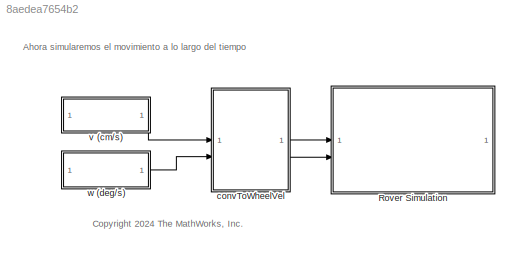
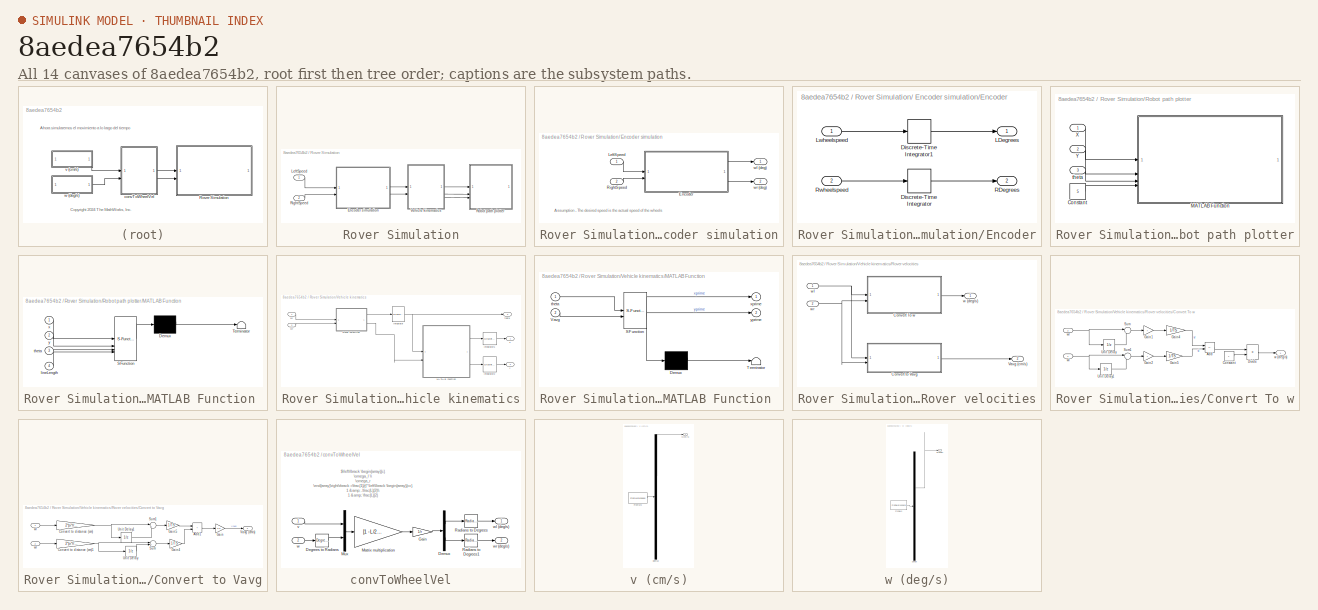
[diagram: thumbnail index - all 14 canvases of the model, root first then tree order]
MODEL slx_8aedea7654b2
KIND model
CONFIG AbsTol = auto
CONFIG EnableMultiTasking = on
CONFIG FixedStep = TS
CONFIG MaxStep = auto
CONFIG MinStep = auto
CONFIG PostLoadFcn = params
CONFIG RelTol = 1e-3
CONFIG SampleTimeConstraint = Unconstrained
CONFIG SolverName = FixedStepDiscrete
CONFIG StartTime = 0.0
CONFIG StopTime = 11
WORKSPACE source: mxarray member
WORKSPACE Ia = 0.1
WORKSPACE Id = 0.25
WORKSPACE Pa = 5
WORKSPACE Pd = 9
WORKSPACE TS = 0.01
BLOCK [SubSystem] Rover Simulation
BLOCK [SubSystem] Rover Simulation/ Encoder simulation
BLOCK [SubSystem] Rover Simulation/ Encoder simulation/Encoder
BLOCK [DiscreteIntegrator] Rover Simulation/ Encoder simulation/Encoder/Discrete-Time Integrator
  ICPrevOutput = DiscIntNeverNeededParam
  ICPrevScaledInput = DiscIntNeverNeededParam
  InitialConditionSetting = Auto
  SampleTime = -1
BLOCK [DiscreteIntegrator] Rover Simulation/ Encoder simulation/Encoder/Discrete-Time Integrator1
  ICPrevOutput = DiscIntNeverNeededParam
  ICPrevScaledInput = DiscIntNeverNeededParam
  InitialConditionSetting = Auto
  SampleTime = -1
BLOCK [Outport] Rover Simulation/ Encoder simulation/Encoder/LDegrees
  VectorParamsAs1DForOutWhenUnconnected = off
BLOCK [Inport] Rover Simulation/ Encoder simulation/Encoder/Lwheelspeed
BLOCK [Outport] Rover Simulation/ Encoder simulation/Encoder/RDegrees
  Port = 2
  VectorParamsAs1DForOutWhenUnconnected = off
BLOCK [Inport] Rover Simulation/ Encoder simulation/Encoder/Rwheelspeed
  Port = 2
BLOCK [Inport] Rover Simulation/ Encoder simulation/LeftSpeed
BLOCK [Inport] Rover Simulation/ Encoder simulation/RightSpeed
  Port = 2
BLOCK [Outport] Rover Simulation/ Encoder simulation/wl (deg)
  VectorParamsAs1DForOutWhenUnconnected = off
BLOCK [Outport] Rover Simulation/ Encoder simulation/wr (deg)
  Port = 2
  VectorParamsAs1DForOutWhenUnconnected = off
BLOCK [Inport] Rover Simulation/LeftSpeed
BLOCK [Inport] Rover Simulation/RightSpeed
  Port = 2
BLOCK [SubSystem] Rover Simulation/Robot path plotter
BLOCK [Constant] Rover Simulation/Robot path plotter/Constant
  Value = 5
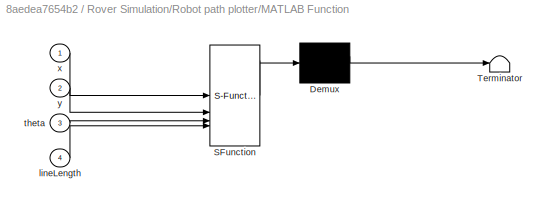
BLOCK [SubSystem] Rover Simulation/Robot path plotter/MATLAB Function 
  ErrorFcn = Stateflow.Translate.translate
  PermitHierarchicalResolution = ExplicitOnly
  SFBlockType = MATLAB Function
  TreatAsAtomicUnit = on
BLOCK [Demux] Rover Simulation/Robot path plotter/MATLAB Function / Demux 
  Outputs = 1
BLOCK [S-Function] Rover Simulation/Robot path plotter/MATLAB Function / SFunction 
  EnableBusSupport = on
  FunctionName = sf_sfun
  Parameters = StartTheta,StartX,StartY
  PortCounts = [4 1]
  SFcnIsStateOwnerBlock = off
  SFunctionDeploymentMode = off
  Tag = Stateflow S-Function 1
BLOCK [Terminator] Rover Simulation/Robot path plotter/MATLAB Function / Terminator 
BLOCK [Inport] Rover Simulation/Robot path plotter/MATLAB Function /lineLength
  Port = 4
BLOCK [Inport] Rover Simulation/Robot path plotter/MATLAB Function /theta
  Port = 3
BLOCK [Inport] Rover Simulation/Robot path plotter/MATLAB Function /x
BLOCK [Inport] Rover Simulation/Robot path plotter/MATLAB Function /y
  Port = 2
BLOCK [Inport] Rover Simulation/Robot path plotter/X
BLOCK [Inport] Rover Simulation/Robot path plotter/Y
  Port = 2
BLOCK [Inport] Rover Simulation/Robot path plotter/theta
  Port = 3
BLOCK [SubSystem] Rover Simulation/Vehicle kinematics
BLOCK [DiscreteIntegrator] Rover Simulation/Vehicle kinematics/Integrator
  ICPrevOutput = DiscIntNeverNeededParam
  ICPrevScaledInput = DiscIntNeverNeededParam
  InitialCondition = StartTheta
  InitialConditionSetting = Auto
  SampleTime = -1
  gainval = 1
BLOCK [DiscreteIntegrator] Rover Simulation/Vehicle kinematics/Integrator1
  ICPrevOutput = DiscIntNeverNeededParam
  ICPrevScaledInput = DiscIntNeverNeededParam
  InitialCondition = StartX
  InitialConditionSetting = Auto
  SampleTime = -1
  gainval = 1
BLOCK [DiscreteIntegrator] Rover Simulation/Vehicle kinematics/Integrator2
  ICPrevOutput = DiscIntNeverNeededParam
  ICPrevScaledInput = DiscIntNeverNeededParam
  InitialCondition = StartY
  InitialConditionSetting = Auto
  SampleTime = -1
  gainval = 1
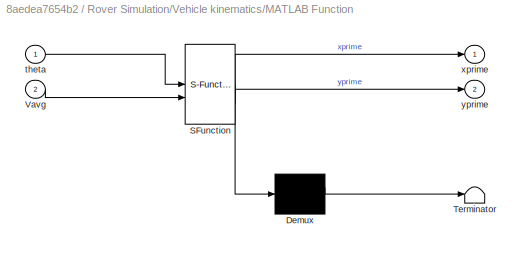
BLOCK [SubSystem] Rover Simulation/Vehicle kinematics/MATLAB Function 
  ErrorFcn = Stateflow.Translate.translate
  PermitHierarchicalResolution = ExplicitOnly
  SFBlockType = MATLAB Function
  TreatAsAtomicUnit = on
BLOCK [Demux] Rover Simulation/Vehicle kinematics/MATLAB Function / Demux 
  Outputs = 1
BLOCK [S-Function] Rover Simulation/Vehicle kinematics/MATLAB Function / SFunction 
  EnableBusSupport = on
  FunctionName = sf_sfun
  PortCounts = [2 3]
  SFcnIsStateOwnerBlock = off
  SFunctionDeploymentMode = off
  Tag = Stateflow S-Function 2
BLOCK [Terminator] Rover Simulation/Vehicle kinematics/MATLAB Function / Terminator 
BLOCK [Inport] Rover Simulation/Vehicle kinematics/MATLAB Function /Vavg
  Port = 2
BLOCK [Inport] Rover Simulation/Vehicle kinematics/MATLAB Function /theta
BLOCK [Outport] Rover Simulation/Vehicle kinematics/MATLAB Function /xprime
  VectorParamsAs1DForOutWhenUnconnected = off
BLOCK [Outport] Rover Simulation/Vehicle kinematics/MATLAB Function /yprime
  Port = 2
  VectorParamsAs1DForOutWhenUnconnected = off
BLOCK [SubSystem] Rover Simulation/Vehicle kinematics/Rover velocities
BLOCK [SubSystem] Rover Simulation/Vehicle kinematics/Rover velocities/Convert To w
BLOCK [Sum] Rover Simulation/Vehicle kinematics/Rover velocities/Convert To w/Add
  IconShape = rectangular
  Inputs = +-
BLOCK [Constant] Rover Simulation/Vehicle kinematics/Rover velocities/Convert To w/Constant
  Value = L
BLOCK [Product] Rover Simulation/Vehicle kinematics/Rover velocities/Convert To w/Divide
  Inputs = */
BLOCK [Gain] Rover Simulation/Vehicle kinematics/Rover velocities/Convert To w/Gain1
  Gain = r
BLOCK [Gain] Rover Simulation/Vehicle kinematics/Rover velocities/Convert To w/Gain2
  Gain = r
BLOCK [Gain] Rover Simulation/Vehicle kinematics/Rover velocities/Convert To w/Gain4
  Gain = 1/TS
BLOCK [Gain] Rover Simulation/Vehicle kinematics/Rover velocities/Convert To w/Gain5
  Gain = 1/TS
BLOCK [Sum] Rover Simulation/Vehicle kinematics/Rover velocities/Convert To w/Sum
  Inputs = |+-
BLOCK [Sum] Rover Simulation/Vehicle kinematics/Rover velocities/Convert To w/Sum1
  Inputs = |+-
BLOCK [UnitDelay] Rover Simulation/Vehicle kinematics/Rover velocities/Convert To w/Unit Delay
  HasFrameUpgradeWarning = on
  SampleTime = -1
BLOCK [UnitDelay] Rover Simulation/Vehicle kinematics/Rover velocities/Convert To w/Unit Delay1
  HasFrameUpgradeWarning = on
  SampleTime = -1
BLOCK [Outport] Rover Simulation/Vehicle kinematics/Rover velocities/Convert To w/w (deg//s)
  VectorParamsAs1DForOutWhenUnconnected = off
BLOCK [Inport] Rover Simulation/Vehicle kinematics/Rover velocities/Convert To w/wl
BLOCK [Inport] Rover Simulation/Vehicle kinematics/Rover velocities/Convert To w/wr
  Port = 2
BLOCK [SubSystem] Rover Simulation/Vehicle kinematics/Rover velocities/Convert to Vavg
BLOCK [Sum] Rover Simulation/Vehicle kinematics/Rover velocities/Convert to Vavg/Add1
  IconShape = rectangular
BLOCK [Gain] Rover Simulation/Vehicle kinematics/Rover velocities/Convert to Vavg/Convert to distance (cm)
  Gain = 2*pi*r/360
BLOCK [Gain] Rover Simulation/Vehicle kinematics/Rover velocities/Convert to Vavg/Convert to distance (cm)1
  Gain = 2*pi*r/360
BLOCK [Gain] Rover Simulation/Vehicle kinematics/Rover velocities/Convert to Vavg/Gain
  Gain = 0.5
BLOCK [Gain] Rover Simulation/Vehicle kinematics/Rover velocities/Convert to Vavg/Gain4
  Gain = 1/TS
BLOCK [Gain] Rover Simulation/Vehicle kinematics/Rover velocities/Convert to Vavg/Gain5
  Gain = 1/TS
BLOCK [Sum] Rover Simulation/Vehicle kinematics/Rover velocities/Convert to Vavg/Sum
  Inputs = |+-
BLOCK [Sum] Rover Simulation/Vehicle kinematics/Rover velocities/Convert to Vavg/Sum1
  Inputs = |+-
BLOCK [UnitDelay] Rover Simulation/Vehicle kinematics/Rover velocities/Convert to Vavg/Unit Delay
  HasFrameUpgradeWarning = on
  SampleTime = -1
BLOCK [UnitDelay] Rover Simulation/Vehicle kinematics/Rover velocities/Convert to Vavg/Unit Delay1
  HasFrameUpgradeWarning = on
  SampleTime = -1
BLOCK [Outport] Rover Simulation/Vehicle kinematics/Rover velocities/Convert to Vavg/Vavg (cm//s)
  VectorParamsAs1DForOutWhenUnconnected = off
BLOCK [Inport] Rover Simulation/Vehicle kinematics/Rover velocities/Convert to Vavg/wl
BLOCK [Inport] Rover Simulation/Vehicle kinematics/Rover velocities/Convert to Vavg/wr
  Port = 2
BLOCK [Outport] Rover Simulation/Vehicle kinematics/Rover velocities/Vavg (cm//s)
  Port = 2
BLOCK [Outport] Rover Simulation/Vehicle kinematics/Rover velocities/w (deg//s)
BLOCK [Inport] Rover Simulation/Vehicle kinematics/Rover velocities/wl
BLOCK [Inport] Rover Simulation/Vehicle kinematics/Rover velocities/wr
  Port = 2
BLOCK [Outport] Rover Simulation/Vehicle kinematics/theta
  Port = 3
  VectorParamsAs1DForOutWhenUnconnected = off
BLOCK [Inport] Rover Simulation/Vehicle kinematics/wl
BLOCK [Inport] Rover Simulation/Vehicle kinematics/wr
  Port = 2
BLOCK [Outport] Rover Simulation/Vehicle kinematics/x
  VectorParamsAs1DForOutWhenUnconnected = off
BLOCK [Outport] Rover Simulation/Vehicle kinematics/y
  Port = 2
  VectorParamsAs1DForOutWhenUnconnected = off
BLOCK [SubSystem] convToWheelVel
BLOCK [Gain] convToWheelVel/ Gain
  Gain = 1/r
  Multiplication = Matrix(K*u)
BLOCK [Reference] convToWheelVel/Degrees to Radians  REF=simulink_extras/Transformations/Degrees to
Radians
  SourceBlock = simulink_extras/Transformations/Degrees to\nRadians
  SourceType = DegreesToRadians
BLOCK [Demux] convToWheelVel/Demux
  Outputs = 2
BLOCK [Gain] convToWheelVel/Matrix multiplication
  Gain = [1 -L/2; 1 L/2]
  Multiplication = Matrix(K*u)
BLOCK [Mux] convToWheelVel/Mux
  DisplayOption = bar
  Inputs = 2
BLOCK [Reference] convToWheelVel/Radians to Degrees  REF=simulink_extras/Transformations/Radians
to Degrees
  SourceBlock = simulink_extras/Transformations/Radians\nto Degrees
  SourceType = RadiansToDegrees
BLOCK [Reference] convToWheelVel/Radians to Degrees1  REF=simulink_extras/Transformations/Radians
to Degrees
  SourceBlock = simulink_extras/Transformations/Radians\nto Degrees
  SourceType = RadiansToDegrees
BLOCK [Inport] convToWheelVel/v
BLOCK [Inport] convToWheelVel/w
  Port = 2
BLOCK [Outport] convToWheelVel/wl (deg//s)
  VectorParamsAs1DForOutWhenUnconnected = off
BLOCK [Outport] convToWheelVel/wr (deg//s)
  Port = 2
  VectorParamsAs1DForOutWhenUnconnected = off
BLOCK [SubSystem] v (cm//s)
  ClipboardFcn = sigbuilder_block('clipboard');
  CloseFcn = sigbuilder_block('close');
  ContinueFcn = sigbuilder_block('continue');
  CopyFcn = sigbuilder_block('copy');
  DeleteFcn = sigbuilder_block('delete');
  LoadFcn = sigbuilder_block('load');
  MaskHideContents = on
  ModelCloseFcn = sigbuilder_block('modelClose');
  NameChangeFcn = sigbuilder_block('namechange');
  OpenFcn = sigbuilder_block('open',[145.5 71 600.5 347 ]);
  PauseFcn = sigbuilder_block('pause');
  PreSaveFcn = sigbuilder_block('preSave');
  StartFcn = sigbuilder_block('start');
  StopFcn = sigbuilder_block('stop');
  Tag = STV Subsys
BLOCK [Demux] v (cm//s)/Demux
  DisplayOption = none
  Outputs = 1
  Tag = STV Demux
BLOCK [FromWorkspace] v (cm//s)/FromWs
  Tag = STV FromWs
  VariableName = tuvar
BLOCK [Outport] v (cm//s)/v(cm//s)
  Tag = STV Outport
  VectorParamsAs1DForOutWhenUnconnected = off
BLOCK [SubSystem] w (deg//s)
  ClipboardFcn = sigbuilder_block('clipboard');
  CloseFcn = sigbuilder_block('close');
  ContinueFcn = sigbuilder_block('continue');
  CopyFcn = sigbuilder_block('copy');
  DeleteFcn = sigbuilder_block('delete');
  LoadFcn = sigbuilder_block('load');
  MaskHideContents = on
  ModelCloseFcn = sigbuilder_block('modelClose');
  NameChangeFcn = sigbuilder_block('namechange');
  OpenFcn = sigbuilder_block('open',[479 240 475.5 240 ]);
  PauseFcn = sigbuilder_block('pause');
  PreSaveFcn = sigbuilder_block('preSave');
  StartFcn = sigbuilder_block('start');
  StopFcn = sigbuilder_block('stop');
  Tag = STV Subsys
BLOCK [Demux] w (deg//s)/Demux
  DisplayOption = none
  Outputs = 1
  Tag = STV Demux
BLOCK [FromWorkspace] w (deg//s)/FromWs
  Tag = STV FromWs
  VariableName = tuvar
BLOCK [Outport] w (deg//s)/w (deg//s)
  Tag = STV Outport
  VectorParamsAs1DForOutWhenUnconnected = off
ANNOTATION (root): <copyright redacted>
ANNOTATION (root): Ahora simularemos el movimiento a lo largo del tiempo
ANNOTATION Rover Simulation/ Encoder simulation: Assumption - The desired speed is the actual speed of the wheels
ANNOTATION convToWheelVel: $\left\lbrack \begin{array}{c} \omega_l \\ \omega_r \end{array}\right\rbrack =\frac{1}{r}*\left\lbrack \begin{array}{cc} 1 & -\frac{L}{2}\\ 1 & \frac{L}{2} \end{array}\right\rbrack *\left\lbrack \begin{array}{c} \upsilon \\ \omega \end{array}\right\rbrack$
LINE Rover Simulation/ Encoder simulation/Encoder/Discrete-Time Integrator1:1 -> Rover Simulation/ Encoder simulation/Encoder/LDegrees:1
LINE Rover Simulation/ Encoder simulation/Encoder/Discrete-Time Integrator:1 -> Rover Simulation/ Encoder simulation/Encoder/RDegrees:1
LINE Rover Simulation/ Encoder simulation/Encoder/Lwheelspeed:1 -> Rover Simulation/ Encoder simulation/Encoder/Discrete-Time Integrator1:1
LINE Rover Simulation/ Encoder simulation/Encoder/Rwheelspeed:1 -> Rover Simulation/ Encoder simulation/Encoder/Discrete-Time Integrator:1
LINE Rover Simulation/ Encoder simulation/Encoder:1 -> Rover Simulation/ Encoder simulation/wl (deg):1
LINE Rover Simulation/ Encoder simulation/Encoder:2 -> Rover Simulation/ Encoder simulation/wr (deg):1
LINE Rover Simulation/ Encoder simulation/LeftSpeed:1 -> Rover Simulation/ Encoder simulation/Encoder:1
LINE Rover Simulation/ Encoder simulation/RightSpeed:1 -> Rover Simulation/ Encoder simulation/Encoder:2
LINE Rover Simulation/ Encoder simulation:1 -> Rover Simulation/Vehicle kinematics:1
LINE Rover Simulation/ Encoder simulation:2 -> Rover Simulation/Vehicle kinematics:2
LINE Rover Simulation/LeftSpeed:1 -> Rover Simulation/ Encoder simulation:1
LINE Rover Simulation/RightSpeed:1 -> Rover Simulation/ Encoder simulation:2
LINE Rover Simulation/Robot path plotter/Constant:1 -> Rover Simulation/Robot path plotter/MATLAB Function :4
LINE Rover Simulation/Robot path plotter/X:1 -> Rover Simulation/Robot path plotter/MATLAB Function :1
LINE Rover Simulation/Robot path plotter/Y:1 -> Rover Simulation/Robot path plotter/MATLAB Function :2
LINE Rover Simulation/Robot path plotter/theta:1 -> Rover Simulation/Robot path plotter/MATLAB Function :3
LINE Rover Simulation/Vehicle kinematics/Integrator1:1 -> Rover Simulation/Vehicle kinematics/x:1
LINE Rover Simulation/Vehicle kinematics/Integrator2:1 -> Rover Simulation/Vehicle kinematics/y:1
NET Rover Simulation/Vehicle kinematics/Integrator:1 -> Rover Simulation/Vehicle kinematics/MATLAB Function :1, Rover Simulation/Vehicle kinematics/theta:1
LINE Rover Simulation/Vehicle kinematics/MATLAB Function :1 -> Rover Simulation/Vehicle kinematics/Integrator1:1
LINE Rover Simulation/Vehicle kinematics/MATLAB Function :2 -> Rover Simulation/Vehicle kinematics/Integrator2:1
LINE Rover Simulation/Vehicle kinematics/Rover velocities/Convert To w/Add:1 -> Rover Simulation/Vehicle kinematics/Rover velocities/Convert To w/Divide:1
LINE Rover Simulation/Vehicle kinematics/Rover velocities/Convert To w/Constant:1 -> Rover Simulation/Vehicle kinematics/Rover velocities/Convert To w/Divide:2
LINE Rover Simulation/Vehicle kinematics/Rover velocities/Convert To w/Divide:1 -> Rover Simulation/Vehicle kinematics/Rover velocities/Convert To w/w (deg//s):1
LINE Rover Simulation/Vehicle kinematics/Rover velocities/Convert To w/Gain1:1 -> Rover Simulation/Vehicle kinematics/Rover velocities/Convert To w/Gain4:1
LINE Rover Simulation/Vehicle kinematics/Rover velocities/Convert To w/Gain2:1 -> Rover Simulation/Vehicle kinematics/Rover velocities/Convert To w/Gain5:1
LINE Rover Simulation/Vehicle kinematics/Rover velocities/Convert To w/Gain4:1 -> Rover Simulation/Vehicle kinematics/Rover velocities/Convert To w/Add:1
LINE Rover Simulation/Vehicle kinematics/Rover velocities/Convert To w/Gain5:1 -> Rover Simulation/Vehicle kinematics/Rover velocities/Convert To w/Add:2
LINE Rover Simulation/Vehicle kinematics/Rover velocities/Convert To w/Sum1:1 -> Rover Simulation/Vehicle kinematics/Rover velocities/Convert To w/Gain2:1
LINE Rover Simulation/Vehicle kinematics/Rover velocities/Convert To w/Sum:1 -> Rover Simulation/Vehicle kinematics/Rover velocities/Convert To w/Gain1:1
LINE Rover Simulation/Vehicle kinematics/Rover velocities/Convert To w/Unit Delay1:1 -> Rover Simulation/Vehicle kinematics/Rover velocities/Convert To w/Sum1:2
LINE Rover Simulation/Vehicle kinematics/Rover velocities/Convert To w/Unit Delay:1 -> Rover Simulation/Vehicle kinematics/Rover velocities/Convert To w/Sum:2
NET Rover Simulation/Vehicle kinematics/Rover velocities/Convert To w/wl:1 -> Rover Simulation/Vehicle kinematics/Rover velocities/Convert To w/Sum1:1, Rover Simulation/Vehicle kinematics/Rover velocities/Convert To w/Unit Delay1:1
NET Rover Simulation/Vehicle kinematics/Rover velocities/Convert To w/wr:1 -> Rover Simulation/Vehicle kinematics/Rover velocities/Convert To w/Sum:1, Rover Simulation/Vehicle kinematics/Rover velocities/Convert To w/Unit Delay:1
LINE Rover Simulation/Vehicle kinematics/Rover velocities/Convert To w:1 -> Rover Simulation/Vehicle kinematics/Rover velocities/w (deg//s):1
LINE Rover Simulation/Vehicle kinematics/Rover velocities/Convert to Vavg/Add1:1 -> Rover Simulation/Vehicle kinematics/Rover velocities/Convert to Vavg/Gain:1
NET Rover Simulation/Vehicle kinematics/Rover velocities/Convert to Vavg/Convert to distance (cm)1:1 -> Rover Simulation/Vehicle kinematics/Rover velocities/Convert to Vavg/Sum:1, Rover Simulation/Vehicle kinematics/Rover velocities/Convert to Vavg/Unit Delay:1
NET Rover Simulation/Vehicle kinematics/Rover velocities/Convert to Vavg/Convert to distance (cm):1 -> Rover Simulation/Vehicle kinematics/Rover velocities/Convert to Vavg/Sum1:1, Rover Simulation/Vehicle kinematics/Rover velocities/Convert to Vavg/Unit Delay1:1
LINE Rover Simulation/Vehicle kinematics/Rover velocities/Convert to Vavg/Gain4:1 -> Rover Simulation/Vehicle kinematics/Rover velocities/Convert to Vavg/Add1:2
LINE Rover Simulation/Vehicle kinematics/Rover velocities/Convert to Vavg/Gain5:1 -> Rover Simulation/Vehicle kinematics/Rover velocities/Convert to Vavg/Add1:1
LINE Rover Simulation/Vehicle kinematics/Rover velocities/Convert to Vavg/Gain:1 -> Rover Simulation/Vehicle kinematics/Rover velocities/Convert to Vavg/Vavg (cm//s):1
LINE Rover Simulation/Vehicle kinematics/Rover velocities/Convert to Vavg/Sum1:1 -> Rover Simulation/Vehicle kinematics/Rover velocities/Convert to Vavg/Gain5:1
LINE Rover Simulation/Vehicle kinematics/Rover velocities/Convert to Vavg/Sum:1 -> Rover Simulation/Vehicle kinematics/Rover velocities/Convert to Vavg/Gain4:1
LINE Rover Simulation/Vehicle kinematics/Rover velocities/Convert to Vavg/Unit Delay1:1 -> Rover Simulation/Vehicle kinematics/Rover velocities/Convert to Vavg/Sum1:2
LINE Rover Simulation/Vehicle kinematics/Rover velocities/Convert to Vavg/Unit Delay:1 -> Rover Simulation/Vehicle kinematics/Rover velocities/Convert to Vavg/Sum:2
LINE Rover Simulation/Vehicle kinematics/Rover velocities/Convert to Vavg/wl:1 -> Rover Simulation/Vehicle kinematics/Rover velocities/Convert to Vavg/Convert to distance (cm):1
LINE Rover Simulation/Vehicle kinematics/Rover velocities/Convert to Vavg/wr:1 -> Rover Simulation/Vehicle kinematics/Rover velocities/Convert to Vavg/Convert to distance (cm)1:1
LINE Rover Simulation/Vehicle kinematics/Rover velocities/Convert to Vavg:1 -> Rover Simulation/Vehicle kinematics/Rover velocities/Vavg (cm//s):1
NET Rover Simulation/Vehicle kinematics/Rover velocities/wl:1 -> Rover Simulation/Vehicle kinematics/Rover velocities/Convert To w:1, Rover Simulation/Vehicle kinematics/Rover velocities/Convert to Vavg:1
NET Rover Simulation/Vehicle kinematics/Rover velocities/wr:1 -> Rover Simulation/Vehicle kinematics/Rover velocities/Convert To w:2, Rover Simulation/Vehicle kinematics/Rover velocities/Convert to Vavg:2
LINE Rover Simulation/Vehicle kinematics/Rover velocities:1 -> Rover Simulation/Vehicle kinematics/Integrator:1
LINE Rover Simulation/Vehicle kinematics/Rover velocities:2 -> Rover Simulation/Vehicle kinematics/MATLAB Function :2
LINE Rover Simulation/Vehicle kinematics/wl:1 -> Rover Simulation/Vehicle kinematics/Rover velocities:1
LINE Rover Simulation/Vehicle kinematics/wr:1 -> Rover Simulation/Vehicle kinematics/Rover velocities:2
LINE Rover Simulation/Vehicle kinematics:1 -> Rover Simulation/Robot path plotter:1
LINE Rover Simulation/Vehicle kinematics:2 -> Rover Simulation/Robot path plotter:2
LINE Rover Simulation/Vehicle kinematics:3 -> Rover Simulation/Robot path plotter:3
LINE convToWheelVel/ Gain:1 -> convToWheelVel/Demux:1
LINE convToWheelVel/Degrees to Radians:1 -> convToWheelVel/Mux:2
LINE convToWheelVel/Demux:1 -> convToWheelVel/Radians to Degrees:1
LINE convToWheelVel/Demux:2 -> convToWheelVel/Radians to Degrees1:1
LINE convToWheelVel/Matrix multiplication:1 -> convToWheelVel/ Gain:1
LINE convToWheelVel/Mux:1 -> convToWheelVel/Matrix multiplication:1
LINE convToWheelVel/Radians to Degrees1:1 -> convToWheelVel/wr (deg//s):1
LINE convToWheelVel/Radians to Degrees:1 -> convToWheelVel/wl (deg//s):1
LINE convToWheelVel/v:1 -> convToWheelVel/Mux:1
LINE convToWheelVel/w:1 -> convToWheelVel/Degrees to Radians:1
LINE convToWheelVel:1 -> Rover Simulation:1
LINE convToWheelVel:2 -> Rover Simulation:2
LINE v (cm//s):1 -> convToWheelVel:1
LINE w (deg//s):1 -> convToWheelVel:2
note: NET lines group one-source signal fan-out (src -> all destinations, sorted); 1:1 wires keep LINE
CHART Rover Simulation/Robot path plotter/MATLAB Function  states=1 transitions=1
  STATE_LABEL 'eML_blk_kernel()'
  STATE_LABEL "SCRIPT:\nfunction plotRobot(x,y,theta,lineLength, StartX, StartY, StartTheta)\n\n% Create persistent variables for the figure windows\npersistent h h1 h2;\n\nif isempty(h)\n    % Set up the initial figure window to display the initial position of\n    % the rover\n    h = figure('name','Map of the Robot');\n    h1 = plot(StartX,StartY,'bo');\n    hold on\n    xlim([0 100])\n    ylim([0 100])\n    grid on\n    \n ...<+395ch>"
CHART Rover Simulation/Vehicle kinematics/MATLAB Function  states=1 transitions=1
  STATE_LABEL 'eML_blk_kernel()'
  STATE_LABEL 'SCRIPT:\nfunction [xprime, yprime] = vehiclesPath(theta, Vavg)\n%#codegen\n\n% Implement the equation for the real-world location of the rover\nxprime = Vavg*cosd(theta);\nyprime = Vavg*sind(theta);\n'
CHART  states=0 transitions=0
CHART  states=0 transitions=0
